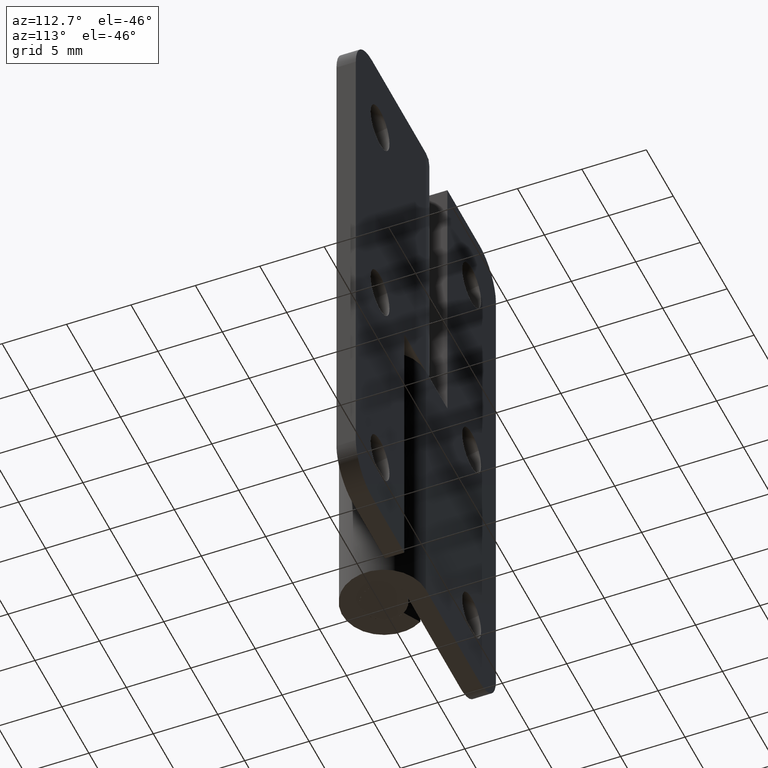
[diagram: clean part render]
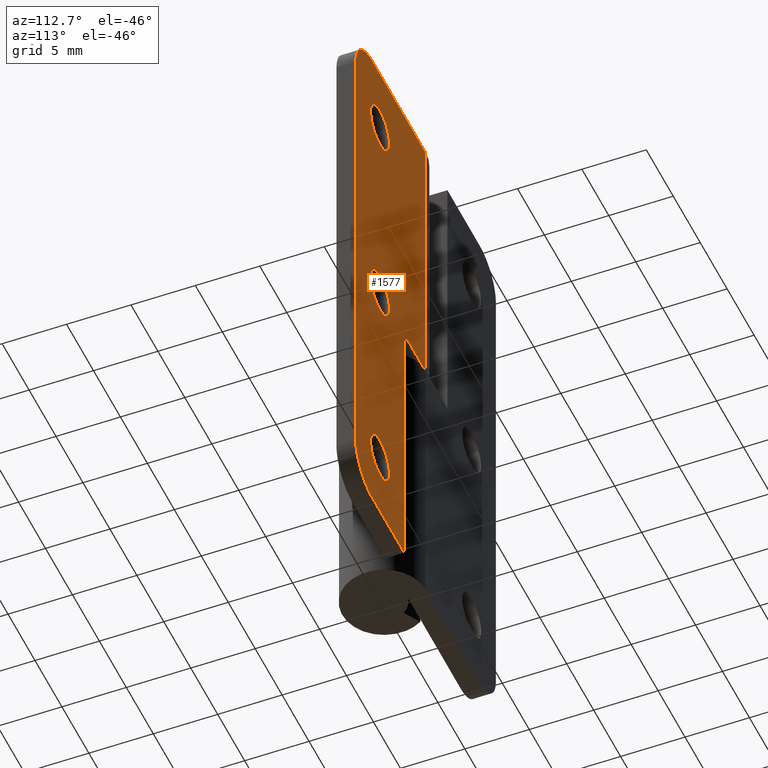
[diagram: same view with one face highlighted and labeled with its STEP entity id]
A machine part, auxiliary view. The second image highlights one B-rep face of the part: STEP entity #1577.
In plain terms, the highlighted face is a freeform B-spline surface patch.
Its self-contained STEP definition (entity closure, byte-faithful):
#423=CARTESIAN_POINT('',(9.790236962348232,3.249997932917373,38.317729649531401));
#424=VERTEX_POINT('',#423);
#430=CARTESIAN_POINT('',(8.500000000000000,3.249998000000000,37.750011999999948));
#431=VERTEX_POINT('',#430);
#432=CARTESIAN_POINT('',(9.790236962348232,3.249997932917373,38.317729649531401));
#433=CARTESIAN_POINT('',(9.688164900207861,3.249997938224356,38.206280622883916));
#434=CARTESIAN_POINT('',(9.443258437078290,3.249997950957652,38.000253616013282));
#435=CARTESIAN_POINT('',(8.998698629828230,3.249997974071405,37.797711023802982));
#436=CARTESIAN_POINT('',(8.666241255320580,3.249997991356717,37.749963517300309));
#437=CARTESIAN_POINT('',(8.500000000000000,3.249998000000000,37.750011999999948));
#438=B_SPLINE_CURVE_WITH_KNOTS('',3,(#432,#433,#434,#435,#436,#437),.UNSPECIFIED.,.F.,.U.,(4,1,1,4),(0.000000018218344,0.453381404564136,0.952097669597981,1.450816824885660),.UNSPECIFIED.);
#439=EDGE_CURVE('',#424,#431,#438,.T.);
#441=CARTESIAN_POINT('',(6.749998000000082,3.249998000000000,39.500014538710978));
#442=VERTEX_POINT('',#441);
#443=CARTESIAN_POINT('',(8.500000000000000,3.249998000000000,37.750011999999948));
#444=CARTESIAN_POINT('',(8.292374308553987,3.249997999999993,37.749837266244413));
#445=CARTESIAN_POINT('',(7.956049873161674,3.249998000000010,37.810630143339822));
#446=CARTESIAN_POINT('',(7.492821457428682,3.249997999999982,38.043777910085467));
#447=CARTESIAN_POINT('',(7.185217385047078,3.249998000000053,38.319113043770727));
#448=CARTESIAN_POINT('',(6.961718737069086,3.249997999999904,38.645040447713157));
#449=CARTESIAN_POINT('',(6.798427288552587,3.249998000000063,39.013287275389189));
#450=CARTESIAN_POINT('',(6.749901923535721,3.249997999999971,39.313878938944413));
#451=CARTESIAN_POINT('',(6.749998000000082,3.249998000000000,39.500014538710978));
#452=B_SPLINE_CURVE_WITH_KNOTS('',3,(#443,#444,#445,#446,#447,#448,#449,#450,#451),.UNSPECIFIED.,.F.,.U.,(4,1,1,1,1,1,4),(0.000000065448394,0.622799807218267,1.009376781373587,1.546248330863985,1.846924437526762,2.190544170059304,2.748914265278361),.UNSPECIFIED.);
#453=EDGE_CURVE('',#431,#442,#452,.T.);
#455=CARTESIAN_POINT('',(7.209763037651767,3.249997932917373,40.682298350468500));
#456=VERTEX_POINT('',#455);
#457=CARTESIAN_POINT('',(6.749998000000082,3.249998000000000,39.500014538710978));
#458=CARTESIAN_POINT('',(6.749901759926154,3.249997990025150,39.675814506346811));
#459=CARTESIAN_POINT('',(6.789062219038067,3.249997975451676,39.932661258234781));
#460=CARTESIAN_POINT('',(6.946253277185724,3.249997952513307,40.336934223910660));
#461=CARTESIAN_POINT('',(7.090936065682096,3.249997940268301,40.552743155559497));
#462=CARTESIAN_POINT('',(7.209763037651767,3.249997932917373,40.682298350468500));
#463=B_SPLINE_CURVE_WITH_KNOTS('',3,(#457,#458,#459,#460,#461,#462),.UNSPECIFIED.,.F.,.U.,(4,1,1,4),(0.000000013333185,0.527355564183799,0.770741364892080,1.298096915763826),.UNSPECIFIED.);
#464=EDGE_CURVE('',#442,#456,#463,.T.);
#505=CARTESIAN_POINT('',(8.500000000000000,3.249998000000000,41.250015999999952));
#506=VERTEX_POINT('',#505);
#507=CARTESIAN_POINT('',(7.209763037651767,3.249997932917373,40.682298350468500));
#508=CARTESIAN_POINT('',(7.347507135929818,3.249997940079039,40.832828343849272));
#509=CARTESIAN_POINT('',(7.615520199575203,3.249997954013685,41.038042608060557));
#510=CARTESIAN_POINT('',(8.069316508472529,3.249997977607707,41.213561686666942));
#511=CARTESIAN_POINT('',(8.348869167641441,3.249997992142340,41.250061636762112));
#512=CARTESIAN_POINT('',(8.500000000000000,3.249998000000000,41.250015999999952));
#513=B_SPLINE_CURVE_WITH_KNOTS('',3,(#507,#508,#509,#510,#511,#512),.UNSPECIFIED.,.F.,.U.,(4,1,1,4),(0.000000018217093,0.612063953133853,0.997435438552598,1.450816824885701),.UNSPECIFIED.);
#514=EDGE_CURVE('',#456,#506,#513,.T.);
#516=CARTESIAN_POINT('',(10.250001999999920,3.249998000000000,39.500013461288930));
#517=VERTEX_POINT('',#516);
#518=CARTESIAN_POINT('',(8.500000000000000,3.249998000000000,41.250015999999952));
#519=CARTESIAN_POINT('',(8.721961383046891,3.249998000000004,41.250255636313867));
#520=CARTESIAN_POINT('',(9.043914554497226,3.249997999999994,41.187872186702023));
#521=CARTESIAN_POINT('',(9.461076614912042,3.249998000000007,40.977863613277172));
#522=CARTESIAN_POINT('',(9.770811291693386,3.249998000000014,40.730018166564811));
#523=CARTESIAN_POINT('',(10.017908556644169,3.249997999999930,40.401044689259827));
#524=CARTESIAN_POINT('',(10.201555502275440,3.249998000000120,39.986737689627532));
#525=CARTESIAN_POINT('',(10.250113980222270,3.249997999999880,39.686151021708859));
#526=CARTESIAN_POINT('',(10.250001999999920,3.249998000000000,39.500013461288930));
#527=B_SPLINE_CURVE_WITH_KNOTS('',3,(#518,#519,#520,#521,#522,#523,#524,#525,#526),.UNSPECIFIED.,.F.,.U.,(4,1,1,1,1,1,4),(0.000000065438818,0.665752511645447,0.966424220064398,1.395913049331490,1.846924437527159,2.190544170059373,2.748914265278364),.UNSPECIFIED.);
#528=EDGE_CURVE('',#506,#517,#527,.T.);
#530=CARTESIAN_POINT('',(10.250001999999920,3.249998000000000,39.500013461288930));
#531=CARTESIAN_POINT('',(10.250006336519190,3.249997994245848,39.398600673659971));
#532=CARTESIAN_POINT('',(10.229980561722311,3.249997981203086,39.168731022439147));
#533=CARTESIAN_POINT('',(10.108047323251521,3.249997957491126,38.750824622114003));
#534=CARTESIAN_POINT('',(9.927401008838155,3.249997941397059,38.467178132652727));
#535=CARTESIAN_POINT('',(9.790236962348232,3.249997932917373,38.317729649531401));
#536=B_SPLINE_CURVE_WITH_KNOTS('',3,(#530,#531,#532,#533,#534,#535),.UNSPECIFIED.,.F.,.U.,(4,1,1,4),(0.000000013331592,0.304241361086578,0.689611950911975,1.298096915763834),.UNSPECIFIED.);
#537=EDGE_CURVE('',#517,#424,#536,.T.);
#627=CARTESIAN_POINT('',(9.790236962348232,3.249997932917374,21.317722649531451));
#628=VERTEX_POINT('',#627);
#634=CARTESIAN_POINT('',(8.500000000000000,3.249998000000000,20.750005000000002));
#635=VERTEX_POINT('',#634);
#636=CARTESIAN_POINT('',(9.790236962348232,3.249997932917374,21.317722649531451));
#637=CARTESIAN_POINT('',(9.677975647520462,3.249997938754115,21.195103917822632));
#638=CARTESIAN_POINT('',(9.459458270381363,3.249997950115379,21.016191476787188));
#639=CARTESIAN_POINT('',(9.021293106607343,3.249997972896680,20.806153417258830));
#640=CARTESIAN_POINT('',(8.704043390927371,3.249997989391273,20.749860992887939));
#641=CARTESIAN_POINT('',(8.500000000000000,3.249998000000000,20.750005000000002));
#642=B_SPLINE_CURVE_WITH_KNOTS('',3,(#636,#637,#638,#639,#640,#641),.UNSPECIFIED.,.F.,.U.,(4,1,1,4),(0.000000018217759,0.498719173499094,0.838752889949570,1.450816824885670),.UNSPECIFIED.);
#643=EDGE_CURVE('',#628,#635,#642,.T.);
#645=CARTESIAN_POINT('',(6.749998000000082,3.249998000000000,22.500007538711021));
#646=VERTEX_POINT('',#645);
#647=CARTESIAN_POINT('',(8.500000000000000,3.249998000000000,20.750005000000002));
#648=CARTESIAN_POINT('',(8.299544808345745,3.249998000000005,20.749863825786001));
#649=CARTESIAN_POINT('',(7.948858532862164,3.249998000000004,20.810950459124641));
#650=CARTESIAN_POINT('',(7.543944405514969,3.249997999999986,21.017932928116409));
#651=CARTESIAN_POINT('',(7.249585783060940,3.249998000000010,21.259533657276211));
#652=CARTESIAN_POINT('',(7.016545648497369,3.249997999999977,21.543457068738210));
#653=CARTESIAN_POINT('',(6.808476812949938,3.249998000000029,21.963199786904958));
#654=CARTESIAN_POINT('',(6.749846323511074,3.249997999999981,22.299544904922261));
#655=CARTESIAN_POINT('',(6.749998000000082,3.249998000000000,22.500007538711021));
#656=B_SPLINE_CURVE_WITH_KNOTS('',3,(#647,#648,#649,#650,#651,#652,#653,#654,#655),.UNSPECIFIED.,.F.,.U.,(4,1,1,1,1,1,4),(0.000000065448878,0.601322738779412,1.052328441318474,1.353001241708976,1.739537627801904,2.147591695812482,2.748914265278334),.UNSPECIFIED.);
#657=EDGE_CURVE('',#635,#646,#656,.T.);
#659=CARTESIAN_POINT('',(7.209763037651769,3.249997932917374,23.682291350468549));
#660=VERTEX_POINT('',#659);
#661=CARTESIAN_POINT('',(6.749998000000082,3.249998000000000,22.500007538711021));
#662=CARTESIAN_POINT('',(6.749916007766185,3.249997990025664,22.675798201908538));
#663=CARTESIAN_POINT('',(6.798286767432989,3.249997971998188,22.993519272647859));
#664=CARTESIAN_POINT('',(6.977254672461442,3.249997949445821,23.390989568704999));
#665=CARTESIAN_POINT('',(7.132107800674281,3.249997937725079,23.597559094144419));
#666=CARTESIAN_POINT('',(7.209763037651769,3.249997932917374,23.682291350468549));
#667=B_SPLINE_CURVE_WITH_KNOTS('',3,(#661,#662,#663,#664,#665,#666),.UNSPECIFIED.,.F.,.U.,(4,1,1,4),(0.000000013332845,0.527355564183275,0.953289812302668,1.298096915763841),.UNSPECIFIED.);
#668=EDGE_CURVE('',#646,#660,#667,.T.);
#709=CARTESIAN_POINT('',(8.500000000000000,3.249998000000000,24.250008999999999));
#710=VERTEX_POINT('',#709);
#711=CARTESIAN_POINT('',(7.209763037651769,3.249997932917374,23.682291350468549));
#712=CARTESIAN_POINT('',(7.281230209428708,3.249997936633130,23.760286269750640));
#713=CARTESIAN_POINT('',(7.466392920777789,3.249997946260196,23.928833959155650));
#714=CARTESIAN_POINT('',(7.789285686892018,3.249997963048191,24.115701068282089));
#715=CARTESIAN_POINT('',(8.152411033430186,3.249997981928003,24.227176861370520));
#716=CARTESIAN_POINT('',(8.386655528421994,3.249997994106922,24.250020240160701));
#717=CARTESIAN_POINT('',(8.500000000000000,3.249998000000000,24.250008999999999));
#718=B_SPLINE_CURVE_WITH_KNOTS('',3,(#711,#712,#713,#714,#715,#716,#717),.UNSPECIFIED.,.F.,.U.,(4,1,1,1,4),(0.000000018216501,0.317365134296062,0.748067712621804,1.110781969177084,1.450816824885689),.UNSPECIFIED.);
#719=EDGE_CURVE('',#660,#710,#718,.T.);
#721=CARTESIAN_POINT('',(10.250001999999920,3.249998000000000,22.500006461288979));
#722=VERTEX_POINT('',#721);
#723=CARTESIAN_POINT('',(8.500000000000000,3.249998000000000,24.250008999999999));
#724=CARTESIAN_POINT('',(8.707622477426103,3.249998000000005,24.250179301570551));
#725=CARTESIAN_POINT('',(9.058270634398824,3.249997999999993,24.186816313809000));
#726=CARTESIAN_POINT('',(9.525663694432867,3.249998000000011,23.944339849268449));
#727=CARTESIAN_POINT('',(9.849054374749214,3.249997999999970,23.643907476723712));
#728=CARTESIAN_POINT('',(10.090098054271619,3.249998000000051,23.268328723939021));
#729=CARTESIAN_POINT('',(10.221544818793610,3.249997999999994,22.893731054673019));
#730=CARTESIAN_POINT('',(10.250013424448360,3.249998000000001,22.621698170762770));
#731=CARTESIAN_POINT('',(10.250001999999920,3.249998000000000,22.500006461288979));
#732=B_SPLINE_CURVE_WITH_KNOTS('',3,(#723,#724,#725,#726,#727,#728,#729,#730,#731),.UNSPECIFIED.,.F.,.U.,(4,1,1,1,1,1,4),(0.000000065434191,0.622799807209287,1.052328441311115,1.567740016117854,1.932827260205206,2.383833802512503,2.748914265278367),.UNSPECIFIED.);
#733=EDGE_CURVE('',#710,#722,#732,.T.);
#735=CARTESIAN_POINT('',(10.250001999999920,3.249998000000000,22.500006461288979));
#736=CARTESIAN_POINT('',(10.250188596081570,3.249997988106164,22.290386016277751));
#737=CARTESIAN_POINT('',(10.192197409977849,3.249997970083901,21.972756260447039));
#738=CARTESIAN_POINT('',(10.002341794206901,3.249997947904153,21.581854145803550));
#739=CARTESIAN_POINT('',(9.867898118933473,3.249997937724932,21.402452174008801));
#740=CARTESIAN_POINT('',(9.790236962348232,3.249997932917374,21.317722649531451));
#741=B_SPLINE_CURVE_WITH_KNOTS('',3,(#735,#736,#737,#738,#739,#740),.UNSPECIFIED.,.F.,.U.,(4,1,1,4),(0.000000013334229,0.628774676230236,0.953289812302958,1.298096915763833),.UNSPECIFIED.);
#742=EDGE_CURVE('',#722,#628,#741,.T.);
#834=CARTESIAN_POINT('',(9.790236962348232,3.249997932917373,4.317715649531454));
#835=VERTEX_POINT('',#834);
#841=CARTESIAN_POINT('',(8.500000000000000,3.249998000000000,3.749998000000000));
#842=VERTEX_POINT('',#841);
#843=CARTESIAN_POINT('',(9.790236962348232,3.249997932917373,4.317715649531454));
#844=CARTESIAN_POINT('',(9.698365183300918,3.249997937694014,4.217418915908828));
#845=CARTESIAN_POINT('',(9.485325334570973,3.249997948770493,4.033437317812900));
#846=CARTESIAN_POINT('',(9.051526706241752,3.249997971324741,3.811484546165416));
#847=CARTESIAN_POINT('',(8.704037045317030,3.249997989391616,3.749860464660495));
#848=CARTESIAN_POINT('',(8.500000000000000,3.249998000000000,3.749998000000000));
#849=B_SPLINE_CURVE_WITH_KNOTS('',3,(#843,#844,#845,#846,#847,#848),.UNSPECIFIED.,.F.,.U.,(4,1,1,4),(0.000000018217439,0.408043305490240,0.838752889949284,1.450816824885677),.UNSPECIFIED.);
#850=EDGE_CURVE('',#835,#842,#849,.T.);
#852=CARTESIAN_POINT('',(6.749998000000082,3.249998000000000,5.500000538711025));
#853=VERTEX_POINT('',#852);
#854=CARTESIAN_POINT('',(8.500000000000000,3.249998000000000,3.749998000000000));
#855=CARTESIAN_POINT('',(8.342510187994845,3.249997999999994,3.749957997384593));
#856=CARTESIAN_POINT('',(8.020381133751169,3.249998000000014,3.793744005544647));
#857=CARTESIAN_POINT('',(7.609465149649315,3.249997999999978,3.972881549716016));
#858=CARTESIAN_POINT('',(7.324434585850081,3.249998000000035,4.192595338212740));
#859=CARTESIAN_POINT('',(7.104769737013422,3.249997999999969,4.429047642852360));
#860=CARTESIAN_POINT('',(6.931948705510286,3.249998000000022,4.694672930922333));
#861=CARTESIAN_POINT('',(6.786982041988955,3.249997999999972,5.070510530277455));
#862=CARTESIAN_POINT('',(6.749941398211260,3.249998000000032,5.342506574765484));
#863=CARTESIAN_POINT('',(6.749998000000082,3.249998000000000,5.500000538711025));
#864=B_SPLINE_CURVE_WITH_KNOTS('',3,(#854,#855,#856,#857,#858,#859,#860,#861,#862,#863),.UNSPECIFIED.,.F.,.U.,(4,1,1,1,1,1,1,4),(0.000000065438785,0.472467808570125,0.966424220063995,1.331513629070627,1.546248330863694,1.932827260205667,2.276446992803903,2.748914265278361),.UNSPECIFIED.);
#865=EDGE_CURVE('',#842,#853,#864,.T.);
#867=CARTESIAN_POINT('',(7.209763037651769,3.249997932917373,6.682284350468546));
#868=VERTEX_POINT('',#867);
#869=CARTESIAN_POINT('',(6.749998000000082,3.249998000000000,5.500000538711025));
#870=CARTESIAN_POINT('',(6.749912244585001,3.249997990025352,5.675796652954254));
#871=CARTESIAN_POINT('',(6.793165355032993,3.249997973916994,5.959695037905290));
#872=CARTESIAN_POINT('',(6.960020198740287,3.249997951149711,6.360952427256576));
#873=CARTESIAN_POINT('',(7.109243858558243,3.249997939138250,6.572645827240486));
#874=CARTESIAN_POINT('',(7.209763037651769,3.249997932917373,6.682284350468546));
#875=B_SPLINE_CURVE_WITH_KNOTS('',3,(#869,#870,#871,#872,#873,#874),.UNSPECIFIED.,.F.,.U.,(4,1,1,4),(0.000000013332907,0.527355564183056,0.851873048258168,1.298096915763834),.UNSPECIFIED.);
#876=EDGE_CURVE('',#853,#868,#875,.T.);
#917=CARTESIAN_POINT('',(8.500000000000000,3.249998000000000,7.250002000000000));
#918=VERTEX_POINT('',#917);
#919=CARTESIAN_POINT('',(7.209763037651769,3.249997932917373,6.682284350468546));
#920=CARTESIAN_POINT('',(7.286330005475368,3.249997936898283,6.765857589430062));
#921=CARTESIAN_POINT('',(7.461422627319102,3.249997946001777,6.923132266629662));
#922=CARTESIAN_POINT('',(7.736540298554813,3.249997960305831,7.084731619424183));
#923=CARTESIAN_POINT('',(8.084442342781175,3.249997978394146,7.214192945061831));
#924=CARTESIAN_POINT('',(8.333751941990466,3.249997991356340,7.250065072907501));
#925=CARTESIAN_POINT('',(8.500000000000000,3.249998000000000,7.250002000000000));
#926=B_SPLINE_CURVE_WITH_KNOTS('',3,(#919,#920,#921,#922,#923,#924,#925),.UNSPECIFIED.,.F.,.U.,(4,1,1,1,4),(0.000000018217656,0.340034873930861,0.702749130492849,0.952097669598082,1.450816824885682),.UNSPECIFIED.);
#927=EDGE_CURVE('',#868,#918,#926,.T.);
#929=CARTESIAN_POINT('',(10.250001999999920,3.249998000000000,5.499999461288978));
#930=VERTEX_POINT('',#929);
#931=CARTESIAN_POINT('',(8.500000000000000,3.249998000000000,7.250002000000000));
#932=CARTESIAN_POINT('',(8.686137175504273,3.249997999999990,7.250101180275939));
#933=CARTESIAN_POINT('',(8.986722384147491,3.249998000000011,7.201561779208195));
#934=CARTESIAN_POINT('',(9.394448894433774,3.249997999999994,7.020818013549963));
#935=CARTESIAN_POINT('',(9.713086988449186,3.249998000000014,6.784529443758055));
#936=CARTESIAN_POINT('',(9.975635922861530,3.249997999999970,6.468545241589540));
#937=CARTESIAN_POINT('',(10.189383532029550,3.249998000000026,6.043952296627253));
#938=CARTESIAN_POINT('',(10.250178959581969,3.249997999999985,5.707626161278586));
#939=CARTESIAN_POINT('',(10.250001999999920,3.249998000000000,5.499999461288978));
#940=B_SPLINE_CURVE_WITH_KNOTS('',3,(#931,#932,#933,#934,#935,#936,#937,#938,#939),.UNSPECIFIED.,.F.,.U.,(4,1,1,1,1,1,4),(0.000000065439643,0.558370346674595,0.901990127623721,1.331513629070869,1.739537627799267,2.126114439706301,2.748914265278366),.UNSPECIFIED.);
#941=EDGE_CURVE('',#918,#930,#940,.T.);
#943=CARTESIAN_POINT('',(10.250001999999920,3.249998000000000,5.499999461288978));
#944=CARTESIAN_POINT('',(10.250098266481469,3.249997990025120,5.324199509533115));
#945=CARTESIAN_POINT('',(10.210937767258221,3.249997975451710,5.067352745330786));
#946=CARTESIAN_POINT('',(10.053746721667130,3.249997952513262,4.663079777906503));
#947=CARTESIAN_POINT('',(9.909063941543309,3.249997940268341,4.447270822412423));
#948=CARTESIAN_POINT('',(9.790236962348232,3.249997932917373,4.317715649531454));
#949=B_SPLINE_CURVE_WITH_KNOTS('',3,(#943,#944,#945,#946,#947,#948),.UNSPECIFIED.,.F.,.U.,(4,1,1,4),(0.000000013333112,0.527355564183246,0.770741364891608,1.298096915763837),.UNSPECIFIED.);
#950=EDGE_CURVE('',#930,#835,#949,.T.);
#1014=CARTESIAN_POINT('',(13.0,3.249998000000000,42.000006999999947));
#1015=VERTEX_POINT('',#1014);
#1021=CARTESIAN_POINT('',(10.0,3.249998000000000,45.000006999999997));
#1022=VERTEX_POINT('',#1021);
#1023=CARTESIAN_POINT('',(10.0,3.249998000000000,45.000006999999997));
#1024=CARTESIAN_POINT('',(10.171806053320450,3.249998000000001,45.000021458196500));
#1025=CARTESIAN_POINT('',(10.515413358094740,3.249998000000001,44.970410303834022));
#1026=CARTESIAN_POINT('',(10.991832711648410,3.249997999999998,44.844848137018623));
#1027=CARTESIAN_POINT('',(11.475574515949400,3.249998000000001,44.630431718475201));
#1028=CARTESIAN_POINT('',(11.884249070946680,3.249998000000000,44.353724313780951));
#1029=CARTESIAN_POINT('',(12.256179459127440,3.249998000000000,43.995201388822103));
#1030=CARTESIAN_POINT('',(12.599317423913361,3.249998000000002,43.544333602667642));
#1031=CARTESIAN_POINT('',(12.912648025756299,3.249998000000000,42.871230635915090));
#1032=CARTESIAN_POINT('',(13.000137747413440,3.249998000000002,42.306820706776207));
#1033=CARTESIAN_POINT('',(13.0,3.249998000000000,42.000006999999947));
#1034=B_SPLINE_CURVE_WITH_KNOTS('',3,(#1023,#1024,#1025,#1026,#1027,#1028,#1029,#1030,#1031,#1032,#1033),.UNSPECIFIED.,.F.,.U.,(4,1,1,1,1,1,1,1,4),(0.000000052646874,0.515419335919577,1.030841144690342,1.472636107538175,2.098506981505599,2.503467877149744,3.018891513002875,3.792024920353795,4.712418548627734),.UNSPECIFIED.);
#1035=EDGE_CURVE('',#1022,#1015,#1034,.T.);
#1077=CARTESIAN_POINT('',(10.0,3.249998000000000,0.0));
#1078=VERTEX_POINT('',#1077);
#1084=CARTESIAN_POINT('',(13.0,3.249998000000000,3.0));
#1085=VERTEX_POINT('',#1084);
#1086=CARTESIAN_POINT('',(13.0,3.249998000000000,3.0));
#1087=CARTESIAN_POINT('',(13.000067360666570,3.249998000000012,2.754558743251232));
#1088=CARTESIAN_POINT('',(12.950008188974479,3.249997999999970,2.349620735071063));
#1089=CARTESIAN_POINT('',(12.784793339412300,3.249998000000035,1.859665947983416));
#1090=CARTESIAN_POINT('',(12.582817834493129,3.249997999999958,1.452227704882059));
#1091=CARTESIAN_POINT('',(12.259327956863119,3.249998000000034,0.986662022410581));
#1092=CARTESIAN_POINT('',(11.772987005286639,3.249998000000005,0.545922724292890));
#1093=CARTESIAN_POINT('',(11.200395657036070,3.249997999999997,0.230832750769450));
#1094=CARTESIAN_POINT('',(10.625851669901961,3.249998000000055,0.044930128926875));
#1095=CARTESIAN_POINT('',(10.220894360612840,3.249997999999978,-0.000035336756225));
#1096=CARTESIAN_POINT('',(10.0,3.249998000000000,0.0));
#1097=B_SPLINE_CURVE_WITH_KNOTS('',3,(#1086,#1087,#1088,#1089,#1090,#1091,#1092,#1093,#1094,#1095,#1096),.UNSPECIFIED.,.F.,.U.,(4,1,1,1,1,1,1,1,4),(0.000000052658749,0.736308232374500,1.214921136867713,1.546263642557783,2.098506981510802,2.908441279411493,3.497497687061127,4.049736334835202,4.712418548627703),.UNSPECIFIED.);
#1098=EDGE_CURVE('',#1085,#1078,#1097,.T.);
#1113=CARTESIAN_POINT('',(3.999999999999901,3.249998000000000,22.500007000000000));
#1114=VERTEX_POINT('',#1113);
#1115=CARTESIAN_POINT('',(3.999999999999901,3.249998000000000,0.0));
#1116=VERTEX_POINT('',#1115);
#1117=CARTESIAN_POINT('',(3.999999999999901,3.249998000000000,22.500007000000000));
#1118=CARTESIAN_POINT('',(3.999999999999901,3.249998000000000,0.0));
#1119=QUASI_UNIFORM_CURVE('',1,(#1117,#1118),.UNSPECIFIED.,.F.,.U.);
#1120=EDGE_CURVE('',#1114,#1116,#1119,.T.);
#1149=CARTESIAN_POINT('',(0.003605550728972,3.249998000000000,22.500007000000000));
#1150=VERTEX_POINT('',#1149);
#1151=CARTESIAN_POINT('',(0.003605550728972,3.249998000000000,22.500007000000000));
#1152=CARTESIAN_POINT('',(3.999999999999901,3.249998000000000,22.500007000000000));
#1153=QUASI_UNIFORM_CURVE('',1,(#1151,#1152),.UNSPECIFIED.,.F.,.U.);
#1154=EDGE_CURVE('',#1150,#1114,#1153,.T.);
#1268=CARTESIAN_POINT('',(0.003605550728972,3.249998000000000,45.000006999999997));
#1269=VERTEX_POINT('',#1268);
#1270=CARTESIAN_POINT('',(10.0,3.249998000000000,45.000006999999997));
#1271=CARTESIAN_POINT('',(0.003605550728972,3.249998000000000,45.000006999999997));
#1272=QUASI_UNIFORM_CURVE('',1,(#1270,#1271),.UNSPECIFIED.,.F.,.U.);
#1273=EDGE_CURVE('',#1022,#1269,#1272,.T.);
#1379=CARTESIAN_POINT('',(13.0,3.249998000000000,42.000006999999947));
#1380=CARTESIAN_POINT('',(13.0,3.249998000000000,3.0));
#1381=QUASI_UNIFORM_CURVE('',1,(#1379,#1380),.UNSPECIFIED.,.F.,.U.);
#1382=EDGE_CURVE('',#1015,#1085,#1381,.T.);
#1393=CARTESIAN_POINT('',(10.0,3.249998000000000,0.0));
#1394=CARTESIAN_POINT('',(3.999999999999901,3.249998000000000,0.0));
#1395=QUASI_UNIFORM_CURVE('',1,(#1393,#1394),.UNSPECIFIED.,.F.,.U.);
#1396=EDGE_CURVE('',#1078,#1116,#1395,.T.);
#1525=CARTESIAN_POINT('',(0.003605550728972,3.249998000000000,45.000006999999997));
#1526=CARTESIAN_POINT('',(0.003605550728972,3.249998000000000,22.500007000000000));
#1527=QUASI_UNIFORM_CURVE('',1,(#1525,#1526),.UNSPECIFIED.,.F.,.U.);
#1528=EDGE_CURVE('',#1269,#1150,#1527,.T.);
#1538=CARTESIAN_POINT('',(-0.645564326822581,3.249998000000000,47.247757262431257));
#1539=CARTESIAN_POINT('',(-0.645564326822581,3.249998000000000,-2.247751469425500));
#1540=CARTESIAN_POINT('',(13.649170226142020,3.249998000000000,47.247757262431257));
#1541=CARTESIAN_POINT('',(13.649170226142020,3.249998000000000,-2.247751469425500));
#1542=B_SPLINE_SURFACE_WITH_KNOTS('',1,1,((#1538,#1540),(#1539,#1541)),.UNSPECIFIED.,.F.,.F.,.U.,(2,2),(2,2),(0.0,49.495508731856773),(0.0,14.294734552964600),.UNSPECIFIED.);
#1543=ORIENTED_EDGE('',*,*,#1382,.T.);
#1544=ORIENTED_EDGE('',*,*,#1098,.T.);
#1545=ORIENTED_EDGE('',*,*,#1396,.T.);
#1546=ORIENTED_EDGE('',*,*,#1120,.F.);
#1547=ORIENTED_EDGE('',*,*,#1154,.F.);
#1548=ORIENTED_EDGE('',*,*,#1528,.F.);
#1549=ORIENTED_EDGE('',*,*,#1273,.F.);
#1550=ORIENTED_EDGE('',*,*,#1035,.T.);
#1551=EDGE_LOOP('',(#1543,#1544,#1545,#1546,#1547,#1548,#1549,#1550));
#1552=FACE_OUTER_BOUND('',#1551,.T.);
#1553=ORIENTED_EDGE('',*,*,#733,.F.);
#1554=ORIENTED_EDGE('',*,*,#719,.F.);
#1555=ORIENTED_EDGE('',*,*,#668,.F.);
#1556=ORIENTED_EDGE('',*,*,#657,.F.);
#1557=ORIENTED_EDGE('',*,*,#643,.F.);
#1558=ORIENTED_EDGE('',*,*,#742,.F.);
#1559=EDGE_LOOP('',(#1553,#1554,#1555,#1556,#1557,#1558));
#1560=FACE_BOUND('',#1559,.T.);
#1561=ORIENTED_EDGE('',*,*,#941,.F.);
#1562=ORIENTED_EDGE('',*,*,#927,.F.);
#1563=ORIENTED_EDGE('',*,*,#876,.F.);
#1564=ORIENTED_EDGE('',*,*,#865,.F.);
#1565=ORIENTED_EDGE('',*,*,#850,.F.);
#1566=ORIENTED_EDGE('',*,*,#950,.F.);
#1567=EDGE_LOOP('',(#1561,#1562,#1563,#1564,#1565,#1566));
#1568=FACE_BOUND('',#1567,.T.);
#1569=ORIENTED_EDGE('',*,*,#528,.F.);
#1570=ORIENTED_EDGE('',*,*,#514,.F.);
#1571=ORIENTED_EDGE('',*,*,#464,.F.);
#1572=ORIENTED_EDGE('',*,*,#453,.F.);
#1573=ORIENTED_EDGE('',*,*,#439,.F.);
#1574=ORIENTED_EDGE('',*,*,#537,.F.);
#1575=EDGE_LOOP('',(#1569,#1570,#1571,#1572,#1573,#1574));
#1576=FACE_BOUND('',#1575,.T.);
#1577=ADVANCED_FACE('',(#1552,#1560,#1568,#1576),#1542,.F.);